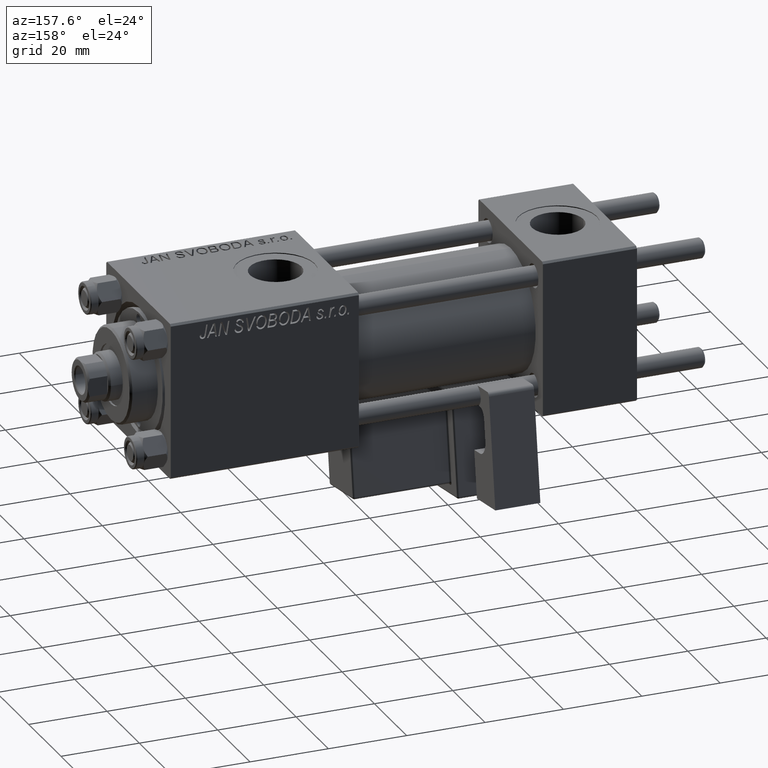
[diagram: clean part render]
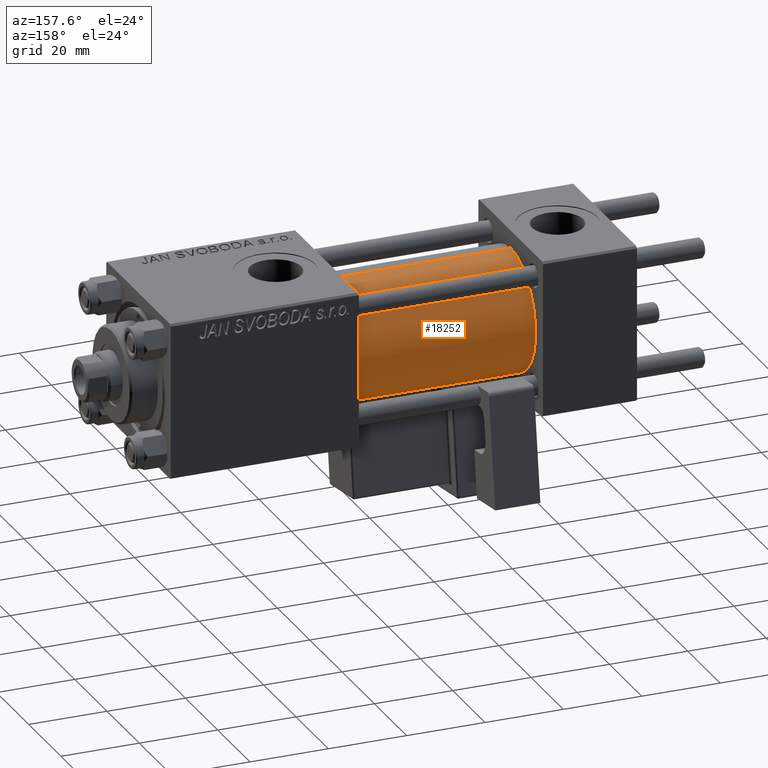
[diagram: same view with one face highlighted and labeled with its STEP entity id]
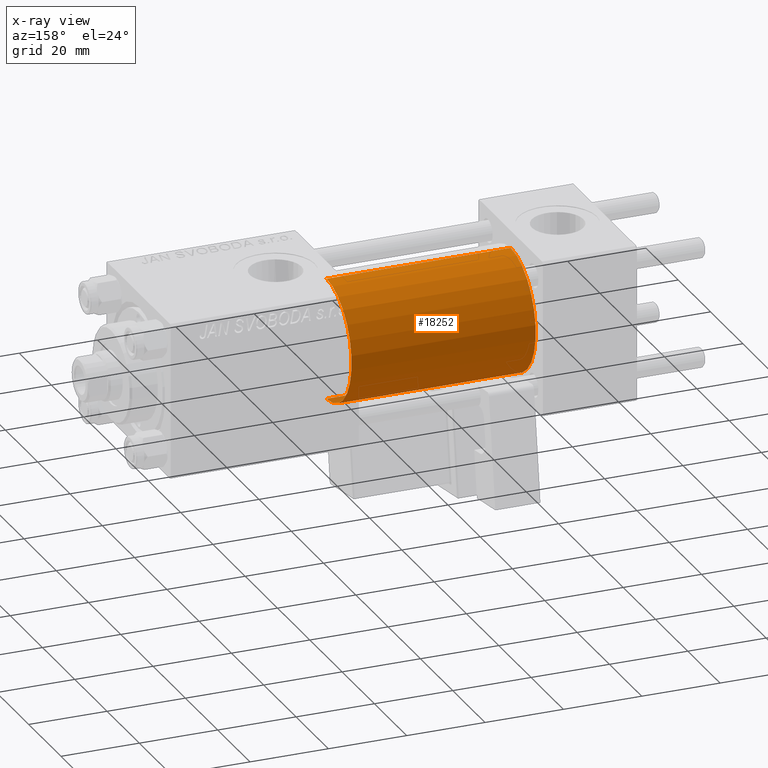
[diagram: x-ray of the same camera — body ghosted, the highlighted face saturated]
A machine part, auxiliary view. The second image highlights one B-rep face of the part: STEP entity #18252.
The next image is the same camera in x-ray: the body ghosted, the highlighted face saturated — about 0% of this face is hidden behind the body in this view.
In plain terms, the highlighted cylindrical surface (partial cylindrical patch) has radius 15.5 mm, axis along (-1, -0, -0).
Its self-contained STEP definition (entity closure, byte-faithful):
#2 = AXIS2_PLACEMENT_3D ( 'NONE', #52375, #39605, #43932 ) ;
#779 = CARTESIAN_POINT ( 'NONE',  ( 24.00000000000000000, 0.000000000000000000, 0.000000000000000000 ) ) ;
#1473 = CARTESIAN_POINT ( 'NONE',  ( 71.00000000000001421, 1.898202538678397557E-15, -15.50000000000000000 ) ) ;
#2693 = VECTOR ( 'NONE', #43418, 1000.000000000000000 ) ;
#3182 = EDGE_CURVE ( 'NONE', #24165, #16519, #13969, .T. ) ;
#4276 = CYLINDRICAL_SURFACE ( 'NONE', #39327, 15.50000000000000000 ) ;
#5742 = ORIENTED_EDGE ( 'NONE', *, *, #49787, .T. ) ;
#7312 = FACE_OUTER_BOUND ( 'NONE', #21282, .T. ) ;
#11938 = CARTESIAN_POINT ( 'NONE',  ( 71.00000000000001421, 0.000000000000000000, 0.000000000000000000 ) ) ;
#12114 = VERTEX_POINT ( 'NONE', #39702 ) ;
#13969 = CIRCLE ( 'NONE', #2, 15.50000000000000000 ) ;
#14893 = ORIENTED_EDGE ( 'NONE', *, *, #15325, .F. ) ;
#15325 = EDGE_CURVE ( 'NONE', #16519, #37964, #21934, .T. ) ;
#16519 = VERTEX_POINT ( 'NONE', #28802 ) ;
#17777 = EDGE_CURVE ( 'NONE', #24165, #12114, #30653, .T. ) ;
#18252 = ADVANCED_FACE ( 'NONE', ( #7312 ), #4276, .T. ) ;
#21282 = EDGE_LOOP ( 'NONE', ( #34290, #27312, #5742, #14893 ) ) ;
#21934 = LINE ( 'NONE', #31195, #51356 ) ;
#24165 = VERTEX_POINT ( 'NONE', #27913 ) ;
#24304 = CIRCLE ( 'NONE', #40848, 15.50000000000000000 ) ;
#27312 = ORIENTED_EDGE ( 'NONE', *, *, #17777, .T. ) ;
#27913 = CARTESIAN_POINT ( 'NONE',  ( 71.00000000000001421, 1.898202538678397557E-15, -15.50000000000000000 ) ) ;
#28802 = CARTESIAN_POINT ( 'NONE',  ( 71.00000000000001421, 0.000000000000000000, 15.50000000000000000 ) ) ;
#29400 = DIRECTION ( 'NONE',  ( 1.000000000000000000, 0.000000000000000000, 0.000000000000000000 ) ) ;
#30653 = LINE ( 'NONE', #1473, #2693 ) ;
#31195 = CARTESIAN_POINT ( 'NONE',  ( 71.00000000000001421, 0.000000000000000000, 15.50000000000000000 ) ) ;
#34290 = ORIENTED_EDGE ( 'NONE', *, *, #3182, .F. ) ;
#37408 = CARTESIAN_POINT ( 'NONE',  ( 24.00000000000000000, 0.000000000000000000, 15.50000000000000000 ) ) ;
#37584 = DIRECTION ( 'NONE',  ( 0.000000000000000000, 0.000000000000000000, 1.000000000000000000 ) ) ;
#37964 = VERTEX_POINT ( 'NONE', #37408 ) ;
#39327 = AXIS2_PLACEMENT_3D ( 'NONE', #11938, #50040, #40557 ) ;
#39605 = DIRECTION ( 'NONE',  ( 1.000000000000000000, 0.000000000000000000, 0.000000000000000000 ) ) ;
#39702 = CARTESIAN_POINT ( 'NONE',  ( 24.00000000000000000, 1.898202538678397557E-15, -15.50000000000000000 ) ) ;
#40557 = DIRECTION ( 'NONE',  ( 0.000000000000000000, 0.000000000000000000, 1.000000000000000000 ) ) ;
#40848 = AXIS2_PLACEMENT_3D ( 'NONE', #779, #29400, #37584 ) ;
#43418 = DIRECTION ( 'NONE',  ( -1.000000000000000000, -0.000000000000000000, -0.000000000000000000 ) ) ;
#43700 = DIRECTION ( 'NONE',  ( -1.000000000000000000, -0.000000000000000000, -0.000000000000000000 ) ) ;
#43932 = DIRECTION ( 'NONE',  ( 0.000000000000000000, 0.000000000000000000, -1.000000000000000000 ) ) ;
#49787 = EDGE_CURVE ( 'NONE', #12114, #37964, #24304, .T. ) ;
#50040 = DIRECTION ( 'NONE',  ( -1.000000000000000000, -0.000000000000000000, -0.000000000000000000 ) ) ;
#51356 = VECTOR ( 'NONE', #43700, 1000.000000000000000 ) ;
#52375 = CARTESIAN_POINT ( 'NONE',  ( 71.00000000000001421, 0.000000000000000000, 0.000000000000000000 ) ) ;